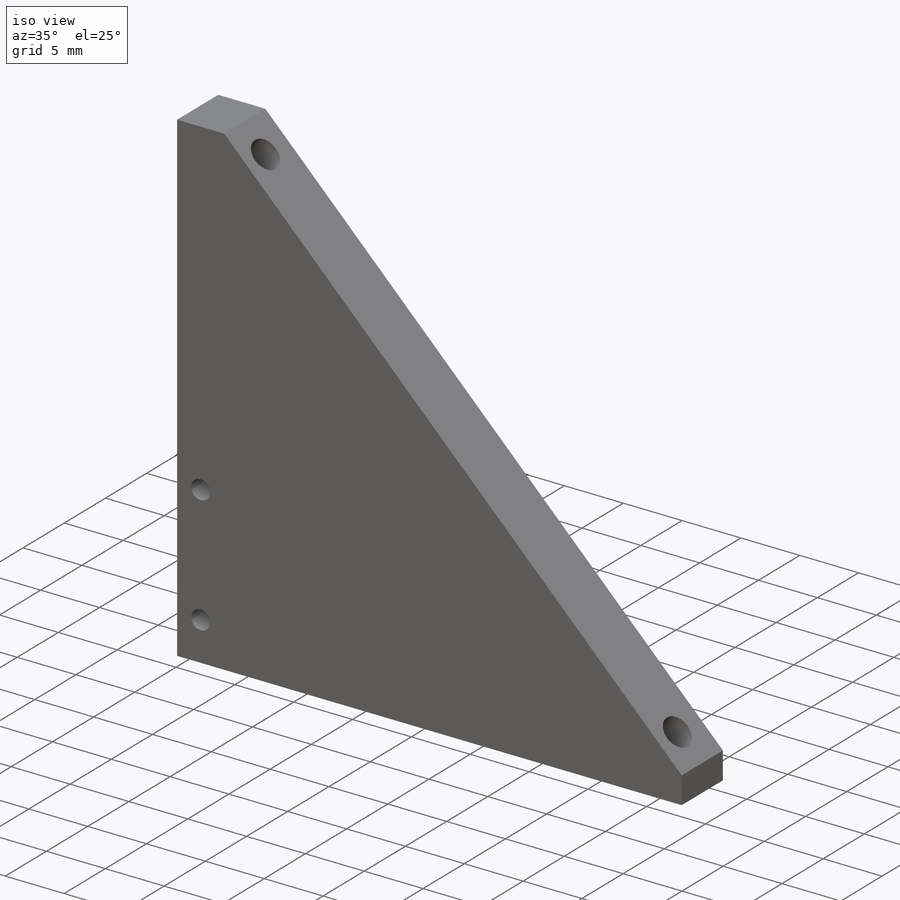
[diagram: iso view]
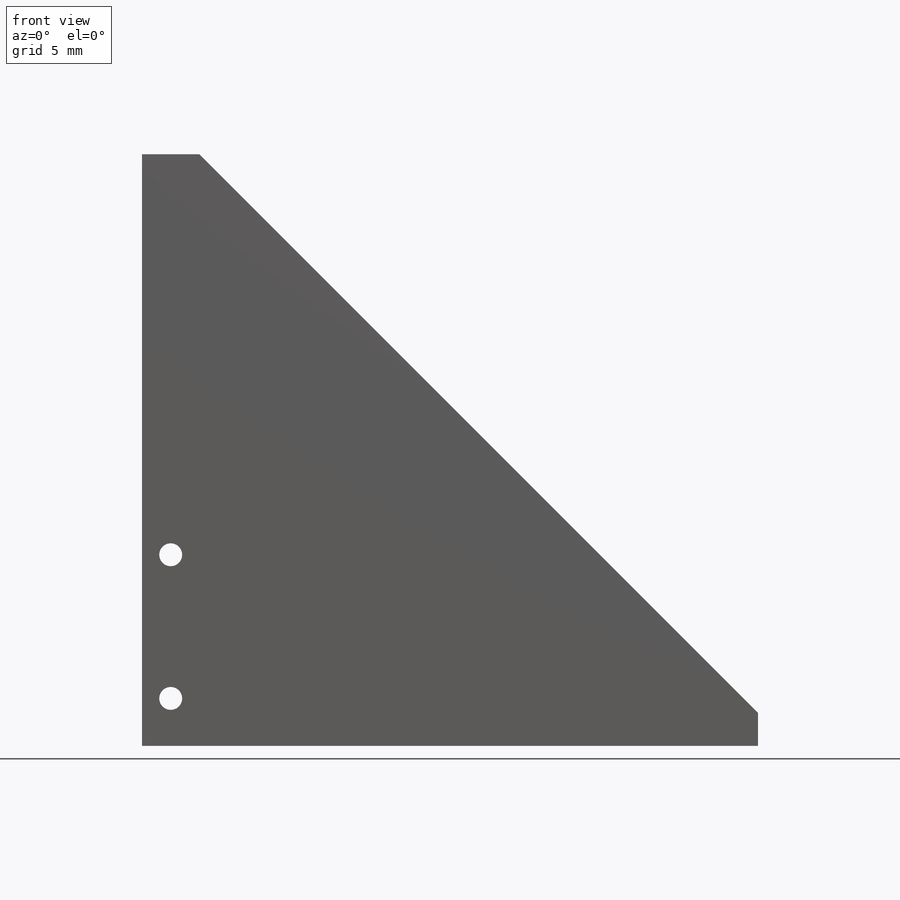
[diagram: front view]
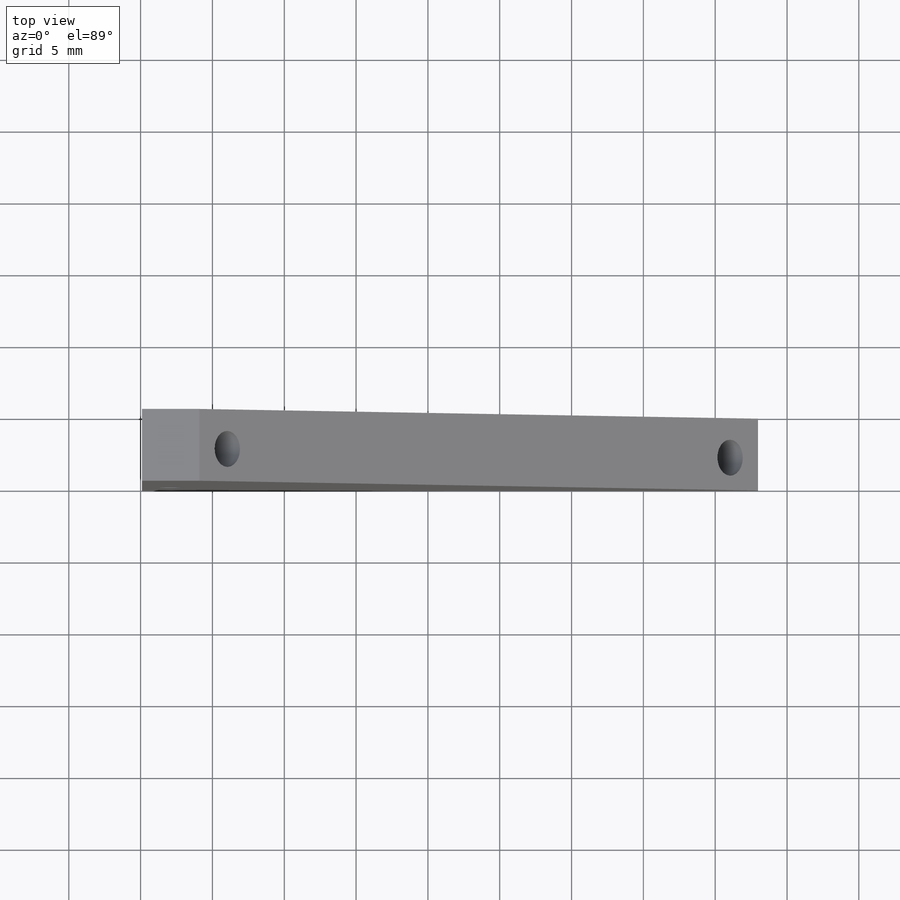
[diagram: top view]
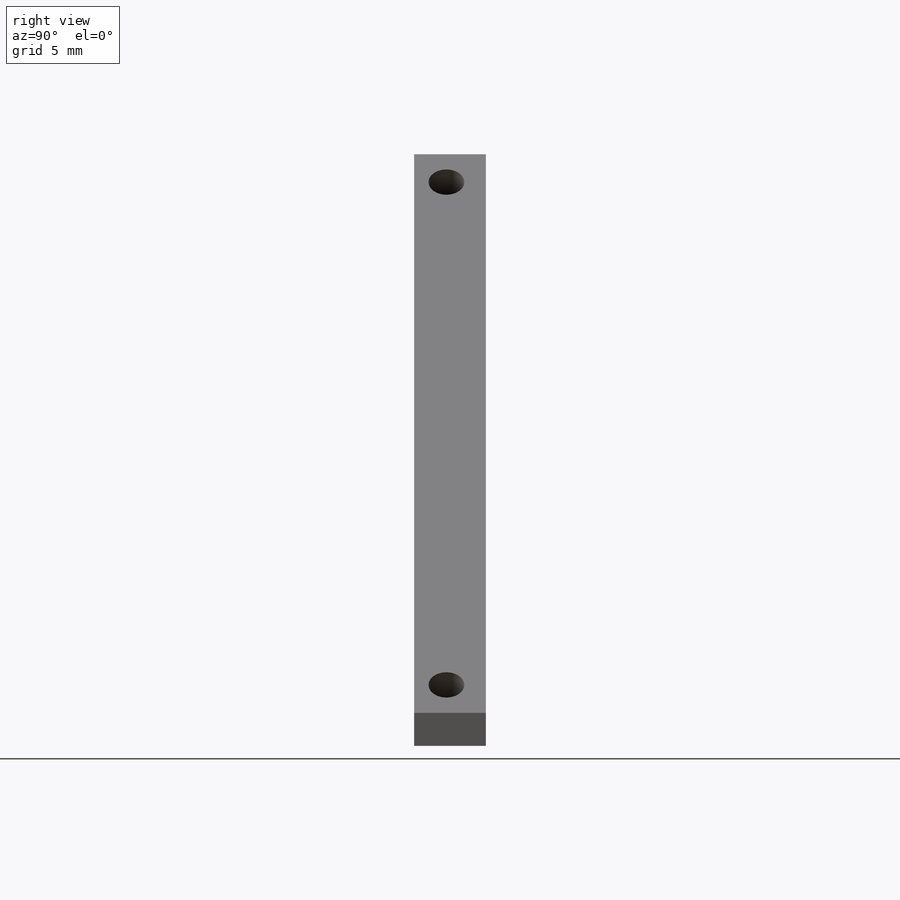
[diagram: right view]
SOLIDWORKS PART (.sldprt)
format: sldprt  version: not decoded by parser v0  size: 773,632 bytes
history: native  units: mm
features: sketch x17, thread x6, extrude x5, hole x3, cut_extrude x2, material x1 (+12 scaffold rows collapsed)
feature tree (46):
  scaffold x12  (default folders/planes/origin — collapsed)
  material  "A286 Iron Base Superalloy"
  sketch  "Sketch2"  dims[c1.D1=65.0mm c1.D2=~27.490168mm c2.D2=45.0deg c2.D3=~45.961941mm c2.D4=~45.961941mm]
  extrude  "Boss-Extrude1"  Depth=5mm
  sketch  "Sketch3"  dims[c1.D3=3.0mm c1.D4=3.0mm c1.D1=49.5mm c1.D2=7.75mm c1.D5=7.75mm c2.D1=2.75mm c2.D6=2.75mm]
  hole  "M3x0.5 Tapped Hole1"  Diameter=2.5mm Depth=3mm
  sketch  "Sketch5"
  sketch  "Sketch4"  dims[hole-wizard template sketch: 50 standard entries collapsed; hole parameters above]
  thread  "Hole Thread1"  Diameter=3mm  [1 undecoded]
  thread  "Hole Thread2"  Diameter=3mm  [1 undecoded]
  sketch  "Sketch6"  dims[D1=2.0mm D2=5.0mm D3=2.0mm D4=5.0mm]
  extrude  "Boss-Extrude2"  [1 undecoded]
  sketch  "Sketch7"
  cut_extrude  "Cut-Extrude1"  [1 undecoded]
  sketch  "Sketch11"
  extrude  "Boss-Extrude3"  [1 undecoded]
  sketch  "Sketch12"  dims[D1=0.46mm]
  extrude  "Boss-Extrude4"  [1 undecoded]
  sketch  "Sketch13"  dims[D1=0.46mm]
  extrude  "Boss-Extrude5"  [1 undecoded]
  sketch  "Sketch14"  dims[c1.D1=3.0mm c1.D2=3.0mm c1.D3=14.45mm c1.D4=17.0mm c1.D5=2.0mm c1.D6=2.0mm c2.D3=5.0mm c2.D4=10.0mm]
  hole  "M2x0.4 Tapped Hole1"  Diameter=1.6mm Depth=5mm
  sketch  "Sketch18"
  sketch  "Sketch17"  dims[hole-wizard template sketch: 60 standard entries collapsed; hole parameters kept: c18.Thru Tap Drill Depth=5.0mm]
  thread  "Hole Thread3"  Diameter=2mm  [1 undecoded]
  thread  "Hole Thread4"  Diameter=2mm  [1 undecoded]
  sketch  "Sketch19"  dims[D1=3.0mm D2=3.0mm D3=13.45mm D4=20.0mm D5=2.0mm D6=2.0mm]
  sketch  "Sketch20"  dims[D1=1.7mm]
  cut_extrude  "Cut-Extrude2"  [1 undecoded]
  sketch  "Sketch21"  dims[D1=3.0mm D2=3.0mm D3=15.0mm D4=12.0mm]
  hole  "M3x0.5 Tapped Hole3"  Diameter=2.5mm Depth=6mm
  sketch  "Sketch23"
  sketch  "Sketch22"  dims[hole-wizard template sketch: 50 standard entries collapsed; hole parameters above]
  thread  "Hole Thread5"  Diameter=6mm  [1 undecoded]
  thread  "Hole Thread6"  Diameter=6mm  [1 undecoded]
decode coverage: 22 of 33 modeling features carry decoded parameters
note: ~ marks probable driven/reference dimensions
note: 12 parameter values undecoded
summary: no parameter record found for 6 features
note: suppression state not decoded; provenance and decode notes live in map.json
